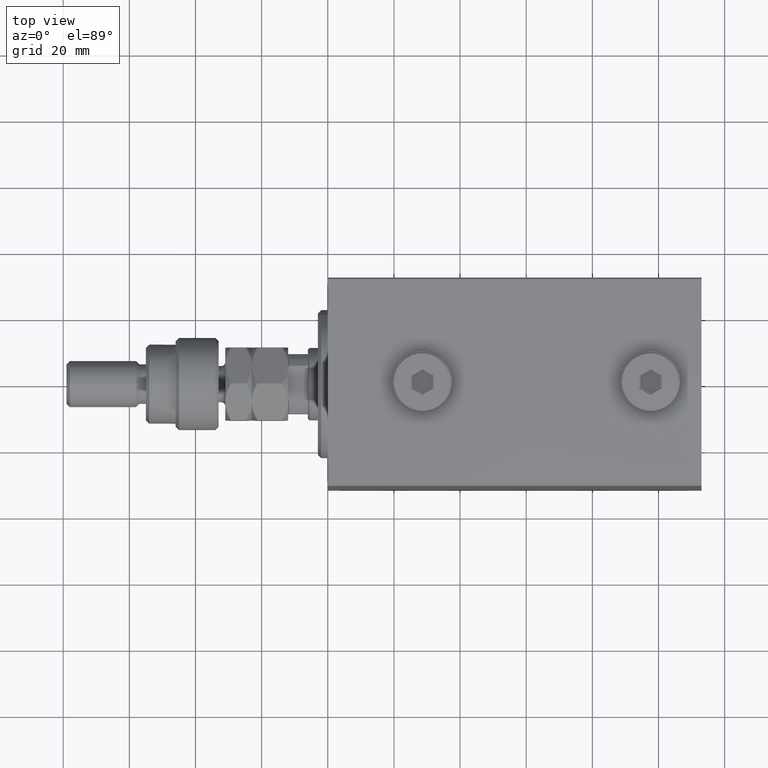
[diagram: clean part render]
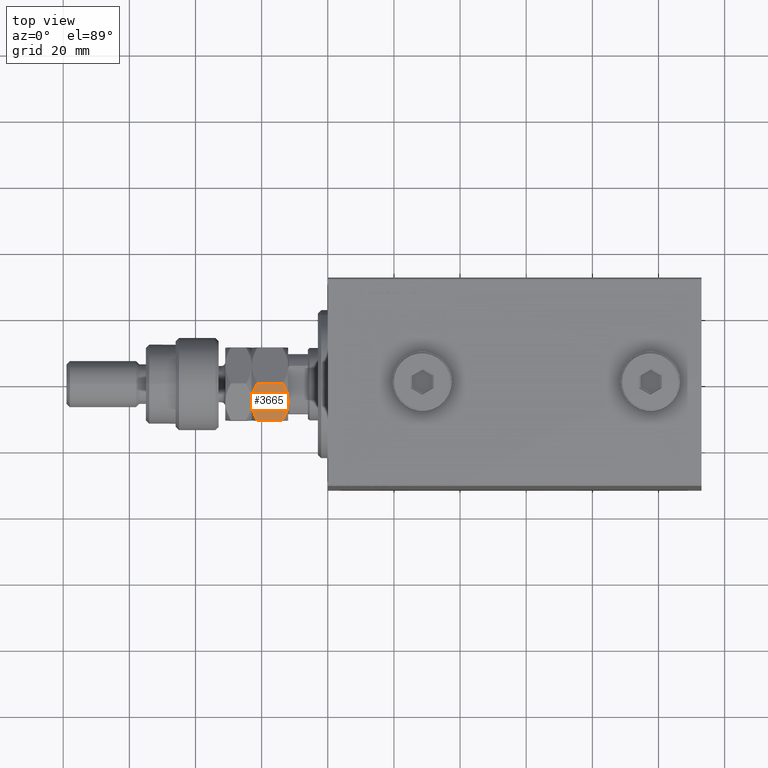
[diagram: same view with one face highlighted and labeled with its STEP entity id]
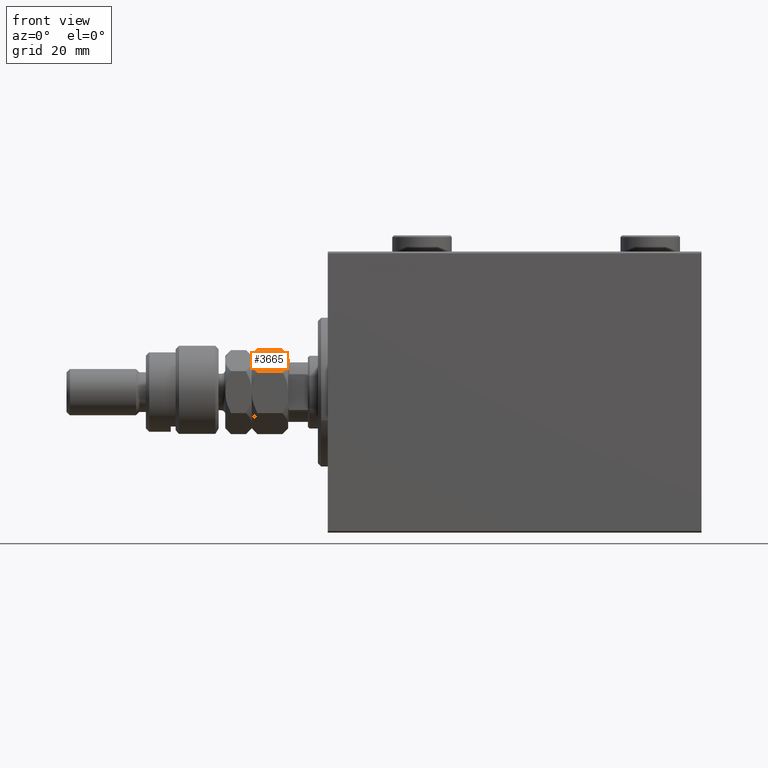
[diagram: same view with one face highlighted and labeled with its STEP entity id]
A machine part, top view. The second image highlights one B-rep face of the part: STEP entity #3665.
A second angle (front view) of the same face is appended — the face is thin or edge-on in the first view.
In plain terms, the highlighted planar face has unit normal (0, 0.5, -0.866).
Its self-contained STEP definition (entity closure, byte-faithful):
#174 = CARTESIAN_POINT ( 'NONE',  ( 11.00000000000000000, -5.363576505757326807, 1.208067694507484413 ) ) ;
#979 = VERTEX_POINT ( 'NONE', #41428 ) ;
#1782 = CARTESIAN_POINT ( 'NONE',  ( 11.00000000000000000, 2.205563362884370715, 0.2057656002039678633 ) ) ;
#3665 = ADVANCED_FACE ( 'NONE', ( #29445 ), #10989, .F. ) ;
#5150 = ORIENTED_EDGE ( 'NONE', *, *, #24235, .F. ) ;
#5507 = CARTESIAN_POINT ( 'NONE',  ( 10.99999999999999822, -2.205563362884370271, 10.79423439979603039 ) ) ;
#5656 = CARTESIAN_POINT ( 'NONE',  ( 10.99999999999999822, 0.5501206218979356466, 0.01029861699449337656 ) ) ;
#5748 = CARTESIAN_POINT ( 'NONE',  ( 10.99999999999999822, -4.323029509133800907, 10.19034626474623551 ) ) ;
#6125 = CARTESIAN_POINT ( 'NONE',  ( 11.00000000000000000, 0.000000000000000000, 0.000000000000000000 ) ) ;
#6219 = CARTESIAN_POINT ( 'NONE',  ( 11.00000000000000178, -1.381217716854154398, 10.91695300848610017 ) ) ;
#6347 = VERTEX_POINT ( 'NONE', #8124 ) ;
#7174 = EDGE_CURVE ( 'NONE', #12125, #14531, #25483, .T. ) ;
#7636 = CARTESIAN_POINT ( 'NONE',  ( 11.00000000000000178, 1.099784029505284533, 10.95829822225798189 ) ) ;
#7978 = B_SPLINE_CURVE_WITH_KNOTS ( 'NONE', 3,
 ( #38442, #22490, #42573, #46220, #27772, #42093, #174, #45978 ),
 .UNSPECIFIED., .F., .F.,
 ( 4, 2, 2, 4 ),
 ( 0.02548310755563731184, 0.02714502201312677179, 0.02880693647061623175, 0.03213076538559515166 ),
 .UNSPECIFIED. ) ;
#8124 = CARTESIAN_POINT ( 'NONE',  ( 11.00000000000000000, -6.350852961085885262, 9.298294077828238358 ) ) ;
#8779 = EDGE_CURVE ( 'NONE', #979, #12125, #25191, .T. ) ;
#9577 = VERTEX_POINT ( 'NONE', #36599 ) ;
#9920 = EDGE_CURVE ( 'NONE', #6347, #21157, #33884, .T. ) ;
#10086 = AXIS2_PLACEMENT_3D ( 'NONE', #25807, #16293, #27236 ) ;
#10989 = PLANE ( 'NONE',  #10086 ) ;
#11275 = CARTESIAN_POINT ( 'NONE',  ( 10.99999999999999467, 0.000000000000000000, 11.00000000000000000 ) ) ;
#12125 = VERTEX_POINT ( 'NONE', #34072 ) ;
#12720 = ORIENTED_EDGE ( 'NONE', *, *, #8779, .F. ) ;
#13174 = CARTESIAN_POINT ( 'NONE',  ( 11.00000000000000178, 1.381217716854154398, 0.08304699151390024237 ) ) ;
#14531 = VERTEX_POINT ( 'NONE', #26150 ) ;
#16293 = DIRECTION ( 'NONE',  ( -1.000000000000000000, 0.000000000000000000, 0.000000000000000000 ) ) ;
#17522 = CARTESIAN_POINT ( 'NONE',  ( 11.00000000000000000, 1.102880524211967916, 0.05171427369706949051 ) ) ;
#18793 = CARTESIAN_POINT ( 'NONE',  ( 10.99999999999999822, 2.189438957741029590, 10.79717463374928421 ) ) ;
#18855 = EDGE_CURVE ( 'NONE', #14531, #21157, #7978, .T. ) ;
#19717 = B_SPLINE_CURVE_WITH_KNOTS ( 'NONE', 3,
 ( #11275, #30224, #7636, #18793, #33614, #45036, #26587, #45984 ),
 .UNSPECIFIED., .F., .F.,
 ( 4, 2, 2, 4 ),
 ( 0.02548310755563731531, 0.02714502201312677526, 0.02880693647061623522, 0.03213076538559515860 ),
 .UNSPECIFIED. ) ;
#19874 = ORIENTED_EDGE ( 'NONE', *, *, #23492, .F. ) ;
#20270 = VECTOR ( 'NONE', #38002, 1000.000000000000000 ) ;
#21157 = VERTEX_POINT ( 'NONE', #23202 ) ;
#21323 = ORIENTED_EDGE ( 'NONE', *, *, #9920, .T. ) ;
#22490 = CARTESIAN_POINT ( 'NONE',  ( 10.99999999999999822, -0.5516605423237674888, 3.811648262644349985E-18 ) ) ;
#23202 = CARTESIAN_POINT ( 'NONE',  ( 11.00000000000000000, -6.350852961085885262, 1.701705922171761864 ) ) ;
#23492 = EDGE_CURVE ( 'NONE', #9577, #979, #19717, .T. ) ;
#23952 = CARTESIAN_POINT ( 'NONE',  ( 11.00000000000000000, -1.102880524211969027, 10.94828572630293273 ) ) ;
#24097 = CARTESIAN_POINT ( 'NONE',  ( 11.00000000000000000, 6.350852961085883486, 1.701705922171761198 ) ) ;
#24233 = VECTOR ( 'NONE', #28608, 1000.000000000000000 ) ;
#24235 = EDGE_CURVE ( 'NONE', #6347, #9577, #24382, .T. ) ;
#24382 = B_SPLINE_CURVE_WITH_KNOTS ( 'NONE', 3,
 ( #39484, #38768, #35127, #5748, #42658, #39012, #5507, #6219, #23952, #24434, #34884, #46305 ),
 .UNSPECIFIED., .F., .F.,
 ( 4, 2, 2, 2, 2, 4 ),
 ( 0.01886453216956117396, 0.02051917601608021016, 0.02217381986259924637, 0.02382846370911827910, 0.02465578563237779547, 0.02548310755563731531 ),
 .UNSPECIFIED. ) ;
#24434 = CARTESIAN_POINT ( 'NONE',  ( 11.00000000000000178, -0.5501206218979368678, 10.98970138300551191 ) ) ;
#25191 = LINE ( 'NONE', #32479, #24233 ) ;
#25483 = B_SPLINE_CURVE_WITH_KNOTS ( 'NONE', 3,
 ( #24097, #39154, #39632, #38915, #35754, #43517, #1782, #13174, #17522, #5656, #39393, #6125 ),
 .UNSPECIFIED., .F., .F.,
 ( 4, 2, 2, 2, 2, 4 ),
 ( 0.01886453216956117396, 0.02051917601608021016, 0.02217381986259924290, 0.02382846370911827910, 0.02465578563237779547, 0.02548310755563731184 ),
 .UNSPECIFIED. ) ;
#25528 = EDGE_LOOP ( 'NONE', ( #27997, #12720, #19874, #5150, #21323, #32635 ) ) ;
#25807 = CARTESIAN_POINT ( 'NONE',  ( 11.00000000000000000, -6.350852961085885262, 11.00000000000000000 ) ) ;
#26150 = CARTESIAN_POINT ( 'NONE',  ( 11.00000000000000000, 0.000000000000000000, 0.000000000000000000 ) ) ;
#26587 = CARTESIAN_POINT ( 'NONE',  ( 10.99999999999999822, 5.363576505757325918, 9.791932305492514033 ) ) ;
#27236 = DIRECTION ( 'NONE',  ( 0.000000000000000000, 0.000000000000000000, 1.000000000000000000 ) ) ;
#27772 = CARTESIAN_POINT ( 'NONE',  ( 11.00000000000000000, -2.731989201781026111, 0.3224669455115847794 ) ) ;
#27997 = ORIENTED_EDGE ( 'NONE', *, *, #7174, .F. ) ;
#28608 = DIRECTION ( 'NONE',  ( -0.000000000000000000, -0.000000000000000000, -1.000000000000000000 ) ) ;
#29445 = FACE_OUTER_BOUND ( 'NONE', #25528, .T. ) ;
#30224 = CARTESIAN_POINT ( 'NONE',  ( 11.00000000000000178, 0.5516605423237666006, 11.00000000000000355 ) ) ;
#32479 = CARTESIAN_POINT ( 'NONE',  ( 11.00000000000000000, 6.350852961085883486, 11.00000000000000000 ) ) ;
#32635 = ORIENTED_EDGE ( 'NONE', *, *, #18855, .F. ) ;
#33614 = CARTESIAN_POINT ( 'NONE',  ( 11.00000000000000000, 2.731989201781026555, 10.67753305448841772 ) ) ;
#33884 = LINE ( 'NONE', #41412, #20270 ) ;
#34072 = CARTESIAN_POINT ( 'NONE',  ( 11.00000000000000000, 6.350852961085883486, 1.701705922171761198 ) ) ;
#34884 = CARTESIAN_POINT ( 'NONE',  ( 11.00000000000000000, -0.2746235576716405391, 11.00000000000000355 ) ) ;
#35127 = CARTESIAN_POINT ( 'NONE',  ( 11.00000000000000178, -5.349315167928747172, 9.777295308501312121 ) ) ;
#35754 = CARTESIAN_POINT ( 'NONE',  ( 11.00000000000000000, 3.802713407336413276, 0.6276910765349043020 ) ) ;
#36599 = CARTESIAN_POINT ( 'NONE',  ( 10.99999999999999467, 0.000000000000000000, 11.00000000000000000 ) ) ;
#38002 = DIRECTION ( 'NONE',  ( -0.000000000000000000, -0.000000000000000000, -1.000000000000000000 ) ) ;
#38442 = CARTESIAN_POINT ( 'NONE',  ( 11.00000000000000000, 0.000000000000000000, 0.000000000000000000 ) ) ;
#38768 = CARTESIAN_POINT ( 'NONE',  ( 10.99999999999999822, -5.856287164594791150, 9.545576976073807174 ) ) ;
#38915 = CARTESIAN_POINT ( 'NONE',  ( 10.99999999999999822, 4.323029509133802684, 0.8096537352537666044 ) ) ;
#39012 = CARTESIAN_POINT ( 'NONE',  ( 11.00000000000000355, -2.743986917173864892, 10.67427553246086447 ) ) ;
#39154 = CARTESIAN_POINT ( 'NONE',  ( 11.00000000000000178, 5.856287164594785821, 1.454423023926191938 ) ) ;
#39393 = CARTESIAN_POINT ( 'NONE',  ( 10.99999999999999822, 0.2746235576716393179, 8.470329472542994146E-18 ) ) ;
#39484 = CARTESIAN_POINT ( 'NONE',  ( 11.00000000000000000, -6.350852961085885262, 9.298294077828238358 ) ) ;
#39632 = CARTESIAN_POINT ( 'NONE',  ( 11.00000000000000000, 5.349315167928744508, 1.222704691498689877 ) ) ;
#41412 = CARTESIAN_POINT ( 'NONE',  ( 11.00000000000000000, -6.350852961085885262, 11.00000000000000000 ) ) ;
#41428 = CARTESIAN_POINT ( 'NONE',  ( 11.00000000000000000, 6.350852961085883486, 9.298294077828240134 ) ) ;
#42093 = CARTESIAN_POINT ( 'NONE',  ( 11.00000000000000178, -4.344649988696088094, 0.7819333922108973045 ) ) ;
#42573 = CARTESIAN_POINT ( 'NONE',  ( 11.00000000000000178, -1.099784029505286975, 0.04170177774201815762 ) ) ;
#42658 = CARTESIAN_POINT ( 'NONE',  ( 11.00000000000000000, -3.802713407336412832, 10.37230892346509847 ) ) ;
#43517 = CARTESIAN_POINT ( 'NONE',  ( 11.00000000000000000, 2.743986917173864448, 0.3257244675391384736 ) ) ;
#45036 = CARTESIAN_POINT ( 'NONE',  ( 11.00000000000000178, 4.344649988696087206, 10.21806660778910114 ) ) ;
#45978 = CARTESIAN_POINT ( 'NONE',  ( 11.00000000000000000, -6.350852961085885262, 1.701705922171761864 ) ) ;
#45984 = CARTESIAN_POINT ( 'NONE',  ( 11.00000000000000000, 6.350852961085883486, 9.298294077828240134 ) ) ;
#46220 = CARTESIAN_POINT ( 'NONE',  ( 10.99999999999999645, -2.189438957741031366, 0.2028253662507153998 ) ) ;
#46305 = CARTESIAN_POINT ( 'NONE',  ( 10.99999999999999467, 0.000000000000000000, 11.00000000000000000 ) ) ;